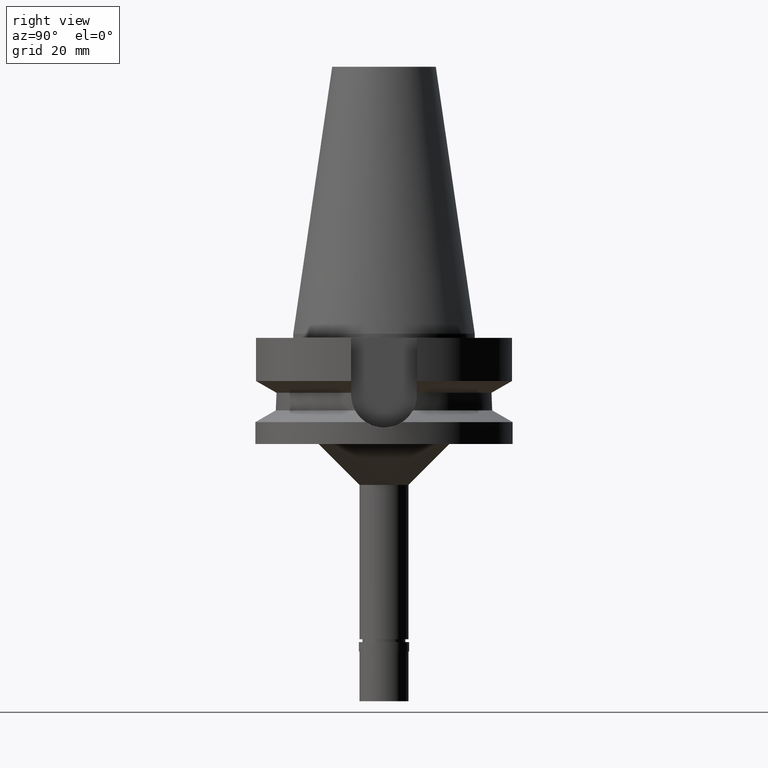
[diagram: clean part render]
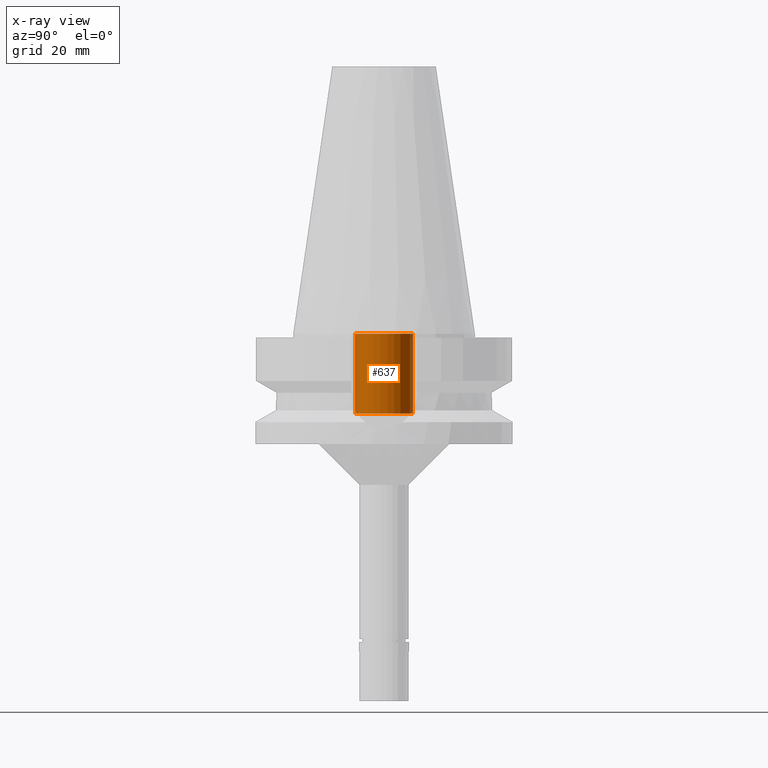
[diagram: x-ray — body ghosted, one internal face saturated and labeled with its STEP entity id]
A machine part, right view, then the same camera in x-ray: the body is ghosted and one INTERNAL B-rep face — a face not visible from any outside direction — is saturated and labeled: STEP entity #637.
In plain terms, the highlighted cylindrical surface (edge-blend (fillet) strip) has radius 7.1 mm, axis along (0, 0, -1).
Its self-contained STEP definition (entity closure, byte-faithful):
#162 = CARTESIAN_POINT ( 'NONE',  ( 0.0000000000000000000, 7.100000000000000533, -19.59999999999999787 ) ) ;
#278 = CIRCLE ( 'NONE', #2720, 7.100000000000000533 ) ;
#306 = CARTESIAN_POINT ( 'NONE',  ( 0.0000000000000000000, -7.100000000000000533, 1.421085471519999938E-13 ) ) ;
#318 = CARTESIAN_POINT ( 'NONE',  ( 0.0000000000000000000, 2.118271568485000005E-14, 1.705302565823999875E-13 ) ) ;
#379 = VERTEX_POINT ( 'NONE', #2550 ) ;
#381 = DIRECTION ( 'NONE',  ( 0.0000000000000000000, 0.0000000000000000000, 1.000000000000000000 ) ) ;
#453 = FACE_OUTER_BOUND ( 'NONE', #2210, .T. ) ;
#482 = DIRECTION ( 'NONE',  ( 0.0000000000000000000, 0.0000000000000000000, -1.000000000000000000 ) ) ;
#617 = ORIENTED_EDGE ( 'NONE', *, *, #1444, .F. ) ;
#628 = AXIS2_PLACEMENT_3D ( 'NONE', #2887, #1803, #1352 ) ;
#633 = EDGE_CURVE ( 'NONE', #841, #1340, #2017, .T. ) ;
#637 = ADVANCED_FACE ( 'NONE', ( #453 ), #1319, .F. ) ;
#841 = VERTEX_POINT ( 'NONE', #1494 ) ;
#892 = CIRCLE ( 'NONE', #1846, 7.100000000000000533 ) ;
#1111 = EDGE_CURVE ( 'NONE', #1552, #841, #278, .T. ) ;
#1146 = VECTOR ( 'NONE', #2683, 1000.000000000000000 ) ;
#1319 = CYLINDRICAL_SURFACE ( 'NONE', #628, 7.100000000000000533 ) ;
#1340 = VERTEX_POINT ( 'NONE', #306 ) ;
#1352 = DIRECTION ( 'NONE',  ( 0.0000000000000000000, -1.000000000000000000, 0.0000000000000000000 ) ) ;
#1362 = CARTESIAN_POINT ( 'NONE',  ( 0.0000000000000000000, 2.118271568485000005E-14, -19.59999999999999787 ) ) ;
#1383 = EDGE_CURVE ( 'NONE', #1340, #379, #892, .T. ) ;
#1437 = DIRECTION ( 'NONE',  ( 0.0000000000000000000, -1.000000000000000000, 0.0000000000000000000 ) ) ;
#1444 = EDGE_CURVE ( 'NONE', #1552, #379, #1962, .T. ) ;
#1489 = CARTESIAN_POINT ( 'NONE',  ( 0.0000000000000000000, 7.100000000000000533, -19.59999999999999787 ) ) ;
#1494 = CARTESIAN_POINT ( 'NONE',  ( 0.0000000000000000000, -7.100000000000000533, -19.59999999999999787 ) ) ;
#1552 = VERTEX_POINT ( 'NONE', #1489 ) ;
#1803 = DIRECTION ( 'NONE',  ( 0.0000000000000000000, 0.0000000000000000000, -1.000000000000000000 ) ) ;
#1846 = AXIS2_PLACEMENT_3D ( 'NONE', #318, #2551, #1437 ) ;
#1962 = LINE ( 'NONE', #162, #2541 ) ;
#2017 = LINE ( 'NONE', #2470, #1146 ) ;
#2059 = DIRECTION ( 'NONE',  ( 0.0000000000000000000, 1.000000000000000000, 0.0000000000000000000 ) ) ;
#2076 = ORIENTED_EDGE ( 'NONE', *, *, #1111, .T. ) ;
#2210 = EDGE_LOOP ( 'NONE', ( #2076, #2543, #2650, #617 ) ) ;
#2470 = CARTESIAN_POINT ( 'NONE',  ( 0.0000000000000000000, -7.100000000000000533, -19.59999999999999787 ) ) ;
#2541 = VECTOR ( 'NONE', #381, 1000.000000000000000 ) ;
#2543 = ORIENTED_EDGE ( 'NONE', *, *, #633, .T. ) ;
#2550 = CARTESIAN_POINT ( 'NONE',  ( 0.0000000000000000000, 7.100000000000000533, 1.421085471519999938E-13 ) ) ;
#2551 = DIRECTION ( 'NONE',  ( 0.0000000000000000000, 0.0000000000000000000, 1.000000000000000000 ) ) ;
#2650 = ORIENTED_EDGE ( 'NONE', *, *, #1383, .T. ) ;
#2683 = DIRECTION ( 'NONE',  ( 0.0000000000000000000, 0.0000000000000000000, 1.000000000000000000 ) ) ;
#2720 = AXIS2_PLACEMENT_3D ( 'NONE', #1362, #482, #2059 ) ;
#2887 = CARTESIAN_POINT ( 'NONE',  ( 0.0000000000000000000, 2.118271568485000005E-14, 72.96999999999999886 ) ) ;